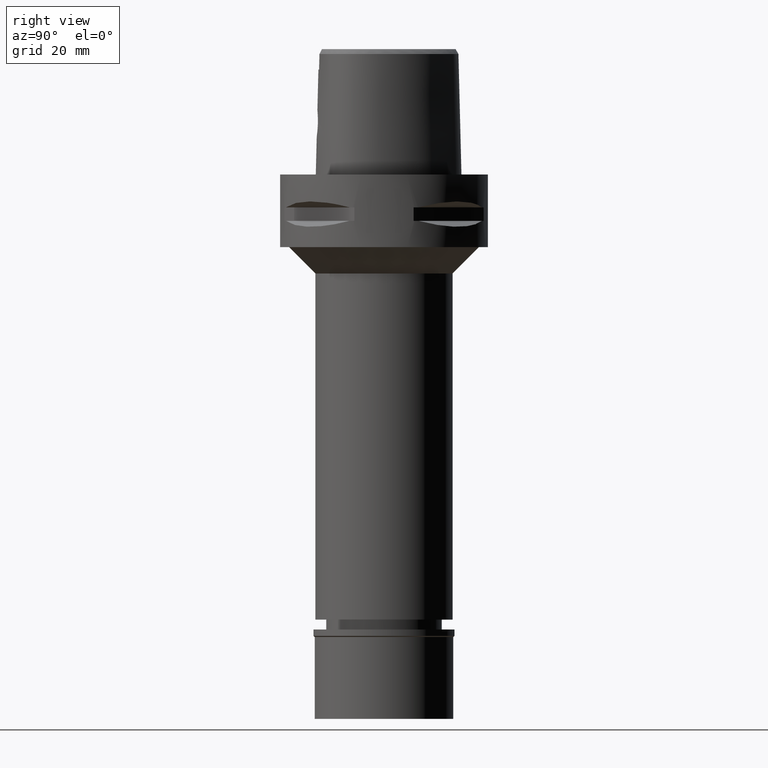
[diagram: clean part render]
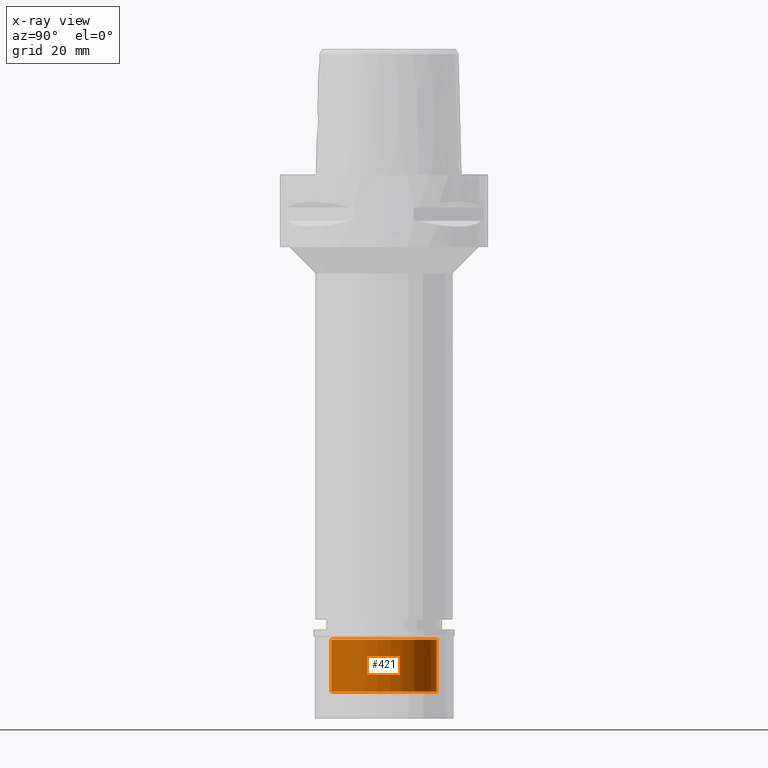
[diagram: x-ray — body ghosted, one internal face saturated and labeled with its STEP entity id]
A machine part, right view, then the same camera in x-ray: the body is ghosted and one INTERNAL B-rep face — a face not visible from any outside direction — is saturated and labeled: STEP entity #421.
In plain terms, the highlighted cylindrical surface (partial cylindrical patch) has radius 16 mm, axis along (0, 0, -1).
Its self-contained STEP definition (entity closure, byte-faithful):
#136 = CARTESIAN_POINT ( 'NONE',  ( 0.0000000000000000000, 16.00000000000000000, -18.89999999999999858 ) ) ;
#192 = DIRECTION ( 'NONE',  ( 0.0000000000000000000, 0.0000000000000000000, -1.000000000000000000 ) ) ;
#318 = EDGE_CURVE ( 'NONE', #2561, #2391, #1711, .T. ) ;
#421 = ADVANCED_FACE ( 'NONE', ( #3361 ), #2219, .F. ) ;
#596 = CARTESIAN_POINT ( 'NONE',  ( 0.0000000000000000000, 0.0000000000000000000, -18.89999999999999858 ) ) ;
#617 = DIRECTION ( 'NONE',  ( 0.0000000000000000000, 0.0000000000000000000, 1.000000000000000000 ) ) ;
#725 = ORIENTED_EDGE ( 'NONE', *, *, #2478, .T. ) ;
#899 = LINE ( 'NONE', #1577, #2869 ) ;
#1064 = EDGE_LOOP ( 'NONE', ( #1107, #725, #4334, #4431 ) ) ;
#1083 = DIRECTION ( 'NONE',  ( 0.0000000000000000000, -1.000000000000000000, 0.0000000000000000000 ) ) ;
#1107 = ORIENTED_EDGE ( 'NONE', *, *, #3214, .T. ) ;
#1126 = DIRECTION ( 'NONE',  ( 0.0000000000000000000, 0.0000000000000000000, -1.000000000000000000 ) ) ;
#1289 = DIRECTION ( 'NONE',  ( 0.0000000000000000000, 1.000000000000000000, 0.0000000000000000000 ) ) ;
#1577 = CARTESIAN_POINT ( 'NONE',  ( 0.0000000000000000000, -16.00000000000000000, -18.89999999999999858 ) ) ;
#1603 = DIRECTION ( 'NONE',  ( 0.0000000000000000000, 0.0000000000000000000, 1.000000000000000000 ) ) ;
#1711 = LINE ( 'NONE', #136, #2009 ) ;
#1830 = CIRCLE ( 'NONE', #2865, 16.00000000000000000 ) ;
#2009 = VECTOR ( 'NONE', #4738, 1000.000000000000000 ) ;
#2110 = CARTESIAN_POINT ( 'NONE',  ( 0.0000000000000000000, -16.00000000000000000, -18.89999999999999858 ) ) ;
#2219 = CYLINDRICAL_SURFACE ( 'NONE', #4161, 16.00000000000000000 ) ;
#2391 = VERTEX_POINT ( 'NONE', #4870 ) ;
#2478 = EDGE_CURVE ( 'NONE', #3117, #4353, #899, .T. ) ;
#2549 = CARTESIAN_POINT ( 'NONE',  ( 0.0000000000000000000, 0.0000000000000000000, -3.100000000000000089 ) ) ;
#2561 = VERTEX_POINT ( 'NONE', #4637 ) ;
#2865 = AXIS2_PLACEMENT_3D ( 'NONE', #596, #192, #1289 ) ;
#2869 = VECTOR ( 'NONE', #1603, 1000.000000000000000 ) ;
#2953 = AXIS2_PLACEMENT_3D ( 'NONE', #2549, #617, #1083 ) ;
#3001 = CARTESIAN_POINT ( 'NONE',  ( 0.0000000000000000000, 0.0000000000000000000, 0.0000000000000000000 ) ) ;
#3117 = VERTEX_POINT ( 'NONE', #2110 ) ;
#3214 = EDGE_CURVE ( 'NONE', #2561, #3117, #1830, .T. ) ;
#3361 = FACE_OUTER_BOUND ( 'NONE', #1064, .T. ) ;
#3479 = EDGE_CURVE ( 'NONE', #4353, #2391, #4696, .T. ) ;
#4161 = AXIS2_PLACEMENT_3D ( 'NONE', #3001, #1126, #4894 ) ;
#4329 = CARTESIAN_POINT ( 'NONE',  ( 0.0000000000000000000, -16.00000000000000000, -3.100000000000000089 ) ) ;
#4334 = ORIENTED_EDGE ( 'NONE', *, *, #3479, .T. ) ;
#4353 = VERTEX_POINT ( 'NONE', #4329 ) ;
#4431 = ORIENTED_EDGE ( 'NONE', *, *, #318, .F. ) ;
#4637 = CARTESIAN_POINT ( 'NONE',  ( 0.0000000000000000000, 16.00000000000000000, -18.89999999999999858 ) ) ;
#4696 = CIRCLE ( 'NONE', #2953, 16.00000000000000000 ) ;
#4738 = DIRECTION ( 'NONE',  ( 0.0000000000000000000, 0.0000000000000000000, 1.000000000000000000 ) ) ;
#4870 = CARTESIAN_POINT ( 'NONE',  ( 0.0000000000000000000, 16.00000000000000000, -3.100000000000000089 ) ) ;
#4894 = DIRECTION ( 'NONE',  ( 0.0000000000000000000, -1.000000000000000000, 0.0000000000000000000 ) ) ;